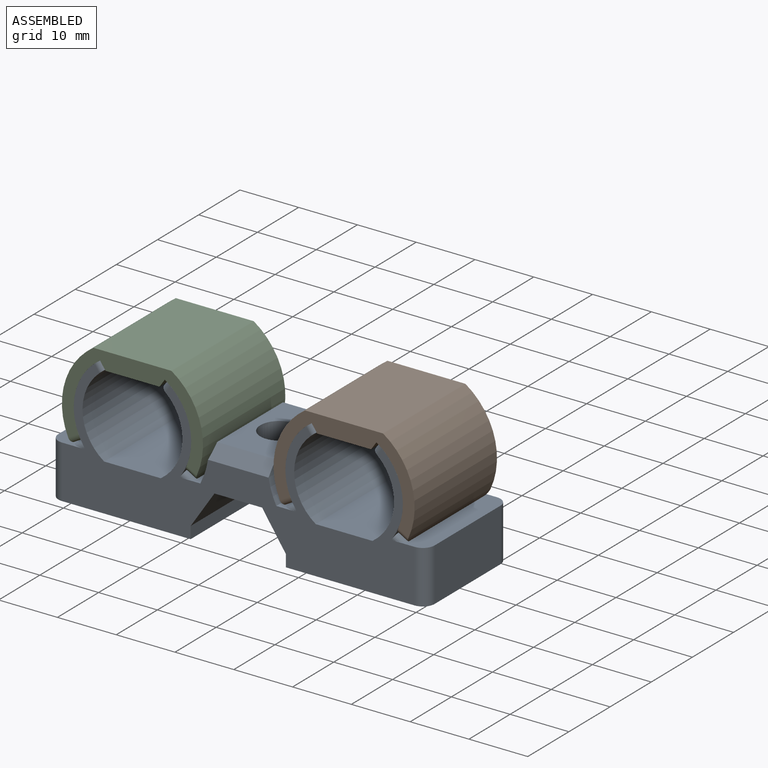
[diagram: assembled view]
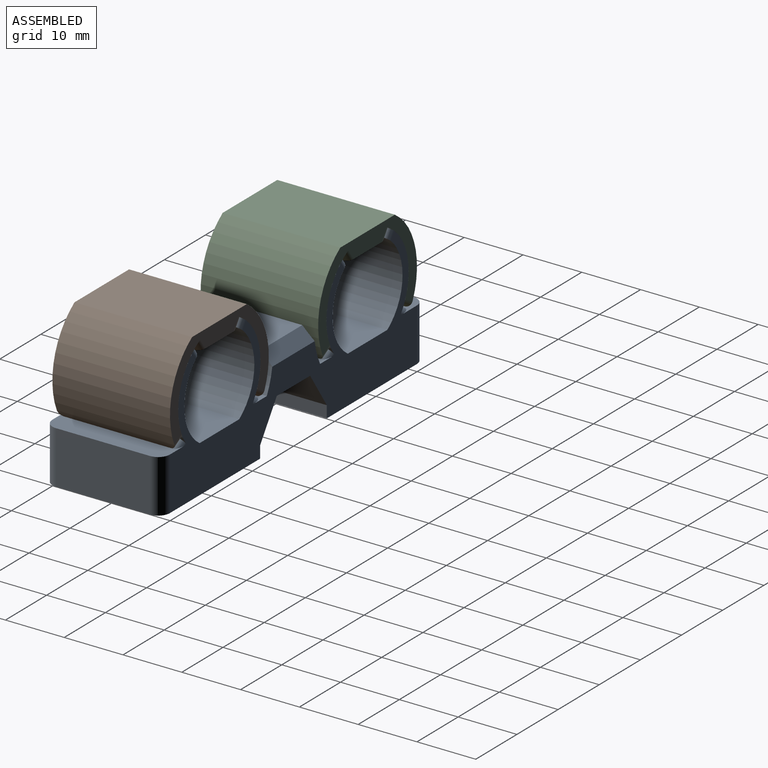
[diagram: assembled view, second angle]
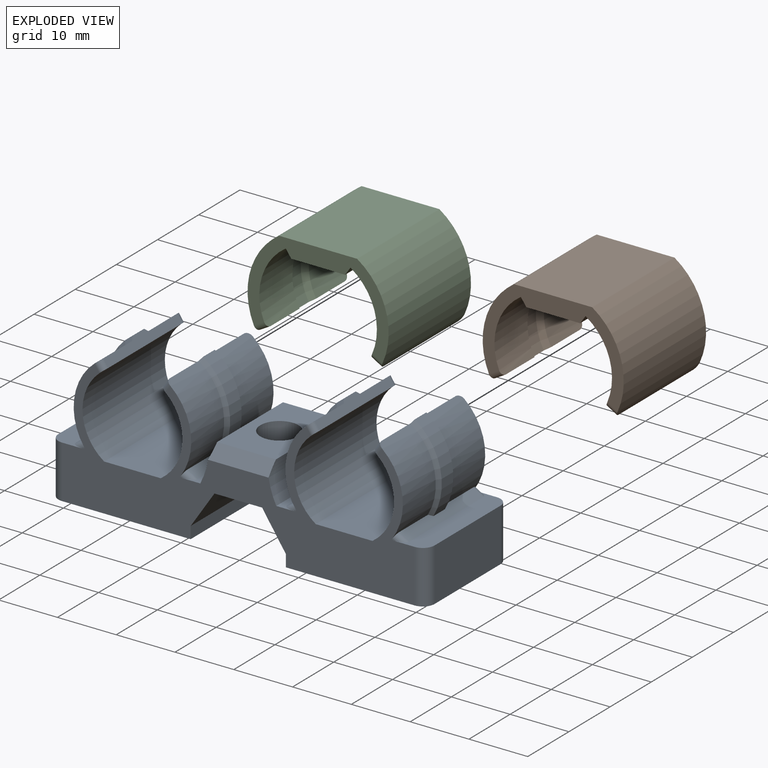
[diagram: exploded view]
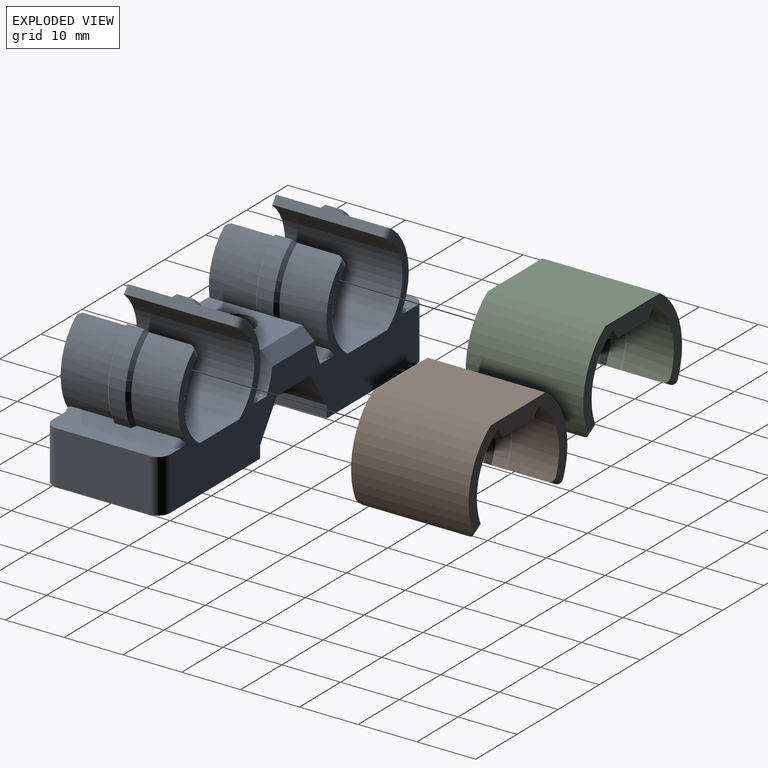
[diagram: exploded view, second angle]
ASSEMBLY  parts=3 mates=2
PART A: 77 faces, bbox 64x23.7x20 mm
  f0: cylinder r=1.65mm len=3.9mm, axis (0,1,0), area 40.4mm2, adj f26,f30
  f1: plane 60x22.63mm, normal (0,0,1), area 544.1mm2, adj f3,f4,f5,f7,f11,f12,f14,f23
  f2: plane 16x9mm, normal (-1,0,0), area 144mm2, adj f3,f23,f31,f32
  f3: plane 20x5.61mm, normal (0,1,0), area 71.3mm2, adj f1,f2,f8,f18,f31,f32,f36,f40
  f4: cylinder r=8.5mm len=20mm, axis (0,0,-1), area 328.6mm2, adj f1,f5,f6,f18,f35,f39
  f5: plane 20x9.64mm, normal (0,1,0), area 192.9mm2, adj f1,f4,f12,f18
  f6: plane 18x1.73mm, normal (0.82,0.57,0), area 29mm2, adj f4,f7,f9,f10,f19,f20,f35,f39
  f7: cylinder r=10mm len=14.08mm, axis (0,0,-1), area 119.3mm2, adj f1,f6,f8,f10,f35,f36
  f8: plane 18x1.73mm, normal (-0.5,0.87,0), area 34mm2, adj f3,f7,f9,f10,f19,f20,f36,f40
  f9: cylinder r=10.6mm len=14.03mm, axis (0,0,-1), area 44.3mm2, adj f6,f8,f10,f20
  f10: cone r=10.6mm half-angle=45deg, axis (0,0,-1), area 13mm2, adj f6,f7,f8,f9
  f11: plane 20x3.14mm, normal (0,1,0), area 23.7mm2, adj f1,f15,f18,f25,f33,f38
  f12: cylinder r=8.5mm len=20mm, axis (0,0,-1), area 328.6mm2, adj f1,f5,f13,f18,f34,f37
  f13: plane 18x1.73mm, normal (-0.82,0.57,0), area 29mm2, adj f12,f14,f16,f17,f21,f22,f34,f37
  f14: cylinder r=10mm len=14.08mm, axis (0,0,-1), area 119.3mm2, adj f1,f13,f15,f17,f37,f38
  f15: plane 18x1.73mm, normal (0.5,0.87,0), area 34mm2, adj f11,f14,f16,f17,f21,f22,f33,f38
  f16: cylinder r=10.6mm len=14.03mm, axis (0,0,-1), area 44.3mm2, adj f13,f15,f17,f22
  f17: cone r=10.6mm half-angle=45deg, axis (0,0,-1), area 13mm2, adj f13,f14,f15,f16
  f18: plane 60x22.63mm, normal (0,0,-1), area 544.1mm2, adj f3,f4,f5,f11,f12,f19,f21,f23
  f19: cylinder r=10mm len=14.08mm, axis (0,0,1), area 119.3mm2, adj f6,f8,f18,f20,f39,f40
  f20: cone r=10.6mm half-angle=45deg, axis (0,0,1), area 13mm2, adj f6,f8,f9,f19
  f21: cylinder r=10mm len=14.08mm, axis (0,0,1), area 119.3mm2, adj f13,f15,f18,f22,f33,f34
  f22: cone r=10.6mm half-angle=45deg, axis (0,0,1), area 13mm2, adj f13,f15,f16,f21
  f23: plane 23.9x20mm, normal (0,-1,0), area 476.3mm2, adj f1,f2,f18,f28,f31,f32
  f24: plane 16x10mm, normal (0,1,0), area 126.8mm2, adj f25,f29,f62,f75,f76
  f25: cylinder r=13mm len=20mm, axis (0,0,1), area 120.7mm2, adj f1,f11,f18,f24,f75,f76
  f26: plane 20x8.11mm, normal (0,-1,0), area 153.6mm2, adj f0,f1,f18,f27,f63
  f27: plane 20x6.07mm, normal (0.83,-0.55,0), area 145.9mm2, adj f1,f18,f26,f28
  f28: plane 20x2.03mm, normal (1,0,0), area 40.6mm2, adj f1,f18,f23,f27
  f29: cylinder r=3.25mm len=6.5mm, axis (0,1,0), area 61.3mm2, adj f24,f30
  f30: plane 6.5x6.5mm, normal (0,1,0), area 24.6mm2, adj f0,f29
  f31: cylinder r=2mm len=9mm, axis (0,1,0), area 28.3mm2, adj f1,f2,f3,f23
  f32: cylinder r=2mm len=9mm, axis (0,1,0), area 28.3mm2, adj f2,f3,f18,f23
  f33: cylinder r=1mm len=2.28mm, axis (-0.87,0.5,0), area 2.2mm2, adj f11,f15,f18,f21
  f34: cylinder r=1mm len=1.85mm, axis (-0.57,-0.82,0), area 2.4mm2, adj f12,f13,f18,f21
  f35: cylinder r=1mm len=1.85mm, axis (0.57,-0.82,0), area 2.4mm2, adj f1,f4,f6,f7
  f36: cylinder r=1mm len=2.28mm, axis (0.87,0.5,0), area 2.2mm2, adj f1,f3,f7,f8
  f37: cylinder r=1mm len=1.85mm, axis (-0.57,-0.82,0), area 2.4mm2, adj f1,f12,f13,f14
  f38: cylinder r=1mm len=2.28mm, axis (-0.87,0.5,0), area 2.2mm2, adj f1,f11,f14,f15
  f39: cylinder r=1mm len=1.85mm, axis (0.57,-0.82,0), area 2.4mm2, adj f4,f6,f18,f19
  f40: cylinder r=1mm len=2.28mm, axis (0.87,0.5,0), area 2.2mm2, adj f3,f8,f18,f19
  f41: plane 16x9mm, normal (1,0,0), area 144mm2, adj f42,f61,f65,f66
  f42: plane 20x5.61mm, normal (0,1,0), area 71.3mm2, adj f1,f18,f41,f47,f65,f66,f70,f74
  f43: cylinder r=8.5mm len=20mm, axis (0,0,-1), area 328.6mm2, adj f1,f18,f44,f45,f69,f73
  f44: plane 20x9.64mm, normal (0,1,0), area 192.9mm2, adj f1,f18,f43,f51
  f45: plane 18x1.73mm, normal (-0.82,0.57,0), area 29mm2, adj f43,f46,f48,f49,f57,f58,f69,f73
  f46: cylinder r=10mm len=14.08mm, axis (0,0,-1), area 119.3mm2, adj f1,f45,f47,f49,f69,f70
  f47: plane 18x1.73mm, normal (0.5,0.87,0), area 34mm2, adj f42,f46,f48,f49,f57,f58,f70,f74
  f48: cylinder r=10.6mm len=14.03mm, axis (0,0,-1), area 44.3mm2, adj f45,f47,f49,f58
  f49: cone r=10.6mm half-angle=45deg, axis (0,0,-1), area 13mm2, adj f45,f46,f47,f48
  f50: plane 20x3.14mm, normal (0,1,0), area 23.7mm2, adj f1,f18,f54,f62,f67,f72
  f51: cylinder r=8.5mm len=20mm, axis (0,0,-1), area 328.6mm2, adj f1,f18,f44,f52,f68,f71
  f52: plane 18x1.73mm, normal (0.82,0.57,0), area 29mm2, adj f51,f53,f55,f56,f59,f60,f68,f71
  f53: cylinder r=10mm len=14.08mm, axis (0,0,-1), area 119.3mm2, adj f1,f52,f54,f56,f71,f72
  f54: plane 18x1.73mm, normal (-0.5,0.87,0), area 34mm2, adj f50,f53,f55,f56,f59,f60,f67,f72
  f55: cylinder r=10.6mm len=14.03mm, axis (0,0,-1), area 44.3mm2, adj f52,f54,f56,f60
  f56: cone r=10.6mm half-angle=45deg, axis (0,0,-1), area 13mm2, adj f52,f53,f54,f55
  f57: cylinder r=10mm len=14.08mm, axis (0,0,1), area 119.3mm2, adj f18,f45,f47,f58,f73,f74
  f58: cone r=10.6mm half-angle=45deg, axis (0,0,1), area 13mm2, adj f45,f47,f48,f57
  f59: cylinder r=10mm len=14.08mm, axis (0,0,1), area 119.3mm2, adj f18,f52,f54,f60,f67,f68
  f60: cone r=10.6mm half-angle=45deg, axis (0,0,1), area 13mm2, adj f52,f54,f55,f59
  f61: plane 23.9x20mm, normal (0,-1,0), area 476.3mm2, adj f1,f18,f41,f64,f65,f66
  f62: cylinder r=13mm len=20mm, axis (0,0,1), area 120.7mm2, adj f1,f18,f24,f50,f75,f76
  f63: plane 20x6.07mm, normal (-0.83,-0.55,0), area 145.9mm2, adj f1,f18,f26,f64
  f64: plane 20x2.03mm, normal (-1,0,0), area 40.6mm2, adj f1,f18,f61,f63
  f65: cylinder r=2mm len=9mm, axis (0,1,0), area 28.3mm2, adj f1,f41,f42,f61
  f66: cylinder r=2mm len=9mm, axis (0,1,0), area 28.3mm2, adj f18,f41,f42,f61
  f67: cylinder r=1mm len=2.28mm, axis (0.87,0.5,0), area 2.2mm2, adj f18,f50,f54,f59
  f68: cylinder r=1mm len=1.85mm, axis (0.57,-0.82,0), area 2.4mm2, adj f18,f51,f52,f59
  f69: cylinder r=1mm len=1.85mm, axis (-0.57,-0.82,0), area 2.4mm2, adj f1,f43,f45,f46
  f70: cylinder r=1mm len=2.28mm, axis (-0.87,0.5,0), area 2.2mm2, adj f1,f42,f46,f47
  f71: cylinder r=1mm len=1.85mm, axis (0.57,-0.82,0), area 2.4mm2, adj f1,f51,f52,f53
  f72: cylinder r=1mm len=2.28mm, axis (0.87,0.5,0), area 2.2mm2, adj f1,f50,f53,f54
  f73: cylinder r=1mm len=1.85mm, axis (-0.57,-0.82,0), area 2.4mm2, adj f18,f43,f45,f57
  f74: cylinder r=1mm len=2.28mm, axis (-0.87,0.5,0), area 2.2mm2, adj f18,f42,f47,f57
  f75: plane 10.32x2.01mm, normal (0,0.71,-0.71), area 28.6mm2, adj f18,f24,f25,f62
  f76: plane 10.32x2.01mm, normal (0,0.71,0.71), area 28.6mm2, adj f1,f24,f25,f62
PART B: 26 faces, bbox 24x15.8x20 mm
  f0: plane 24x14.93mm, normal (0,0,1), area 95.3mm2, adj f1,f2,f3,f4,f5,f9,f10,f11
  f1: plane 20x13.27mm, normal (0,1,0), area 265.3mm2, adj f0,f2,f9,f15
  f2: cylinder r=12mm len=20mm, axis (0,0,-1), area 357.7mm2, adj f0,f1,f6,f15,f22,f25
  f3: plane 20x9.16mm, normal (0,-1,0), area 182.6mm2, adj f0,f4,f10,f15,f20,f23
  f4: plane 19x2.01mm, normal (-0.82,-0.57,0), area 33.6mm2, adj f0,f3,f5,f7,f8,f16,f17,f23
  f5: cylinder r=10mm len=13.17mm, axis (0,0,-1), area 119.1mm2, adj f0,f4,f6,f8,f25
  f6: plane 18x1.73mm, normal (0.5,-0.87,0), area 33.4mm2, adj f2,f5,f7,f8,f16,f17,f22,f25
  f7: cylinder r=10.8mm len=14.23mm, axis (0,0,-1), area 38.7mm2, adj f4,f6,f8,f17
  f8: cone r=10.6mm half-angle=45deg, axis (0,0,-1), area 17.5mm2, adj f4,f5,f6,f7
  f9: cylinder r=12mm len=20mm, axis (0,0,-1), area 357.7mm2, adj f0,f1,f12,f15,f21,f24
  f10: plane 19x2.01mm, normal (0.82,-0.57,0), area 33.6mm2, adj f0,f3,f11,f13,f14,f18,f19,f20
  f11: cylinder r=10mm len=13.17mm, axis (0,0,-1), area 119.1mm2, adj f0,f10,f12,f14,f24
  f12: plane 18x1.73mm, normal (-0.5,-0.87,0), area 33.4mm2, adj f9,f11,f13,f14,f18,f19,f21,f24
  f13: cylinder r=10.8mm len=14.23mm, axis (0,0,-1), area 38.7mm2, adj f10,f12,f14,f19
  f14: cone r=10.6mm half-angle=45deg, axis (0,0,-1), area 17.5mm2, adj f10,f11,f12,f13
  f15: plane 24x14.93mm, normal (0,0,-1), area 91.4mm2, adj f1,f2,f3,f9,f16,f18,f20,f21
  f16: cylinder r=10mm len=13.68mm, axis (0,0,1), area 119.3mm2, adj f4,f6,f15,f17,f22,f23
  f17: cone r=10.6mm half-angle=45deg, axis (0,0,1), area 17.5mm2, adj f4,f6,f7,f16
  f18: cylinder r=10mm len=13.68mm, axis (0,0,1), area 119.3mm2, adj f10,f12,f15,f19,f20,f21
  f19: cone r=10.6mm half-angle=45deg, axis (0,0,1), area 17.5mm2, adj f10,f12,f13,f18
  f20: cylinder r=1mm len=2.48mm, axis (0.57,0.82,0), area 2.9mm2, adj f3,f10,f15,f18
  f21: cylinder r=1mm len=2.29mm, axis (0.87,-0.5,0), area 3.1mm2, adj f9,f12,f15,f18
  f22: cylinder r=1mm len=2.29mm, axis (-0.87,-0.5,0), area 3.1mm2, adj f2,f6,f15,f16
  f23: cylinder r=1mm len=2.48mm, axis (-0.57,0.82,0), area 2.9mm2, adj f3,f4,f15,f16
  f24: cylinder r=1mm len=2.29mm, axis (0.87,-0.5,0), area 3.1mm2, adj f0,f9,f11,f12
  f25: cylinder r=1mm len=2.29mm, axis (-0.87,-0.5,0), area 3.1mm2, adj f0,f2,f5,f6
PART C: same geometry as B
PLACE A rot(axis=(1,0,0),90deg) t=(-0.15,19.88,10.48)mm
PLACE B rot(axis=(1,0,0),90deg) t=(35.85,19.88,10.48)mm
PLACE C rot(axis=(1,0,0),90deg) t=(-0.15,19.88,10.48)mm
MATE fastened C.f2 <-> A.f9  axis (0,1,0) through (-18.15,19.88,10.48)mm
MATE fastened B.f2 <-> A.f48  axis (0,1,0) through (17.85,19.88,10.48)mm
